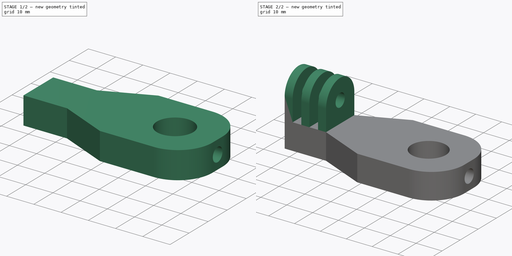
[diagram: build sequence overview — one tinted view per stage of 2, left to right]
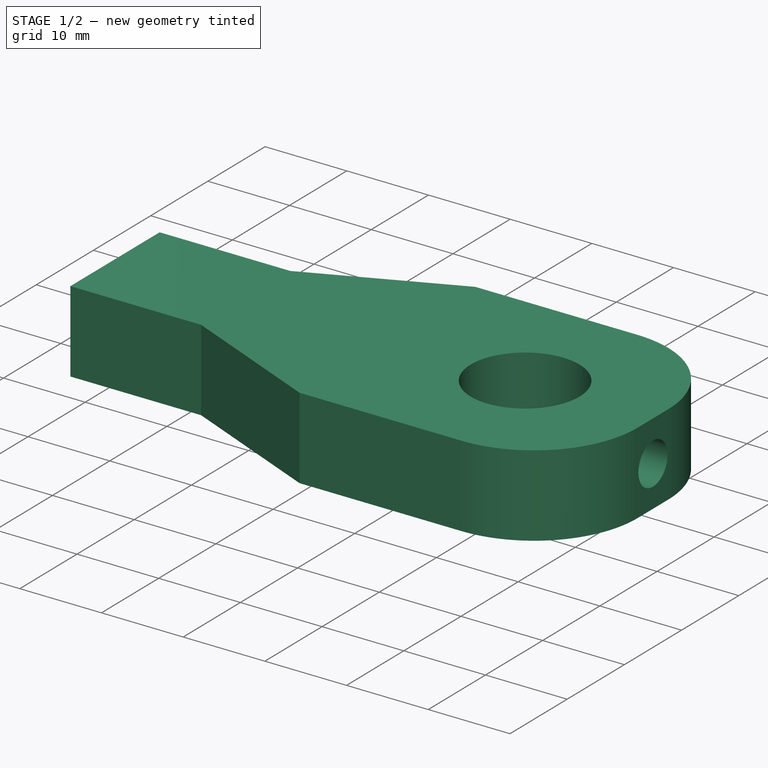
[diagram: stage 1 of 2 — iso view after this stage's code; geometry added in this stage tinted green]
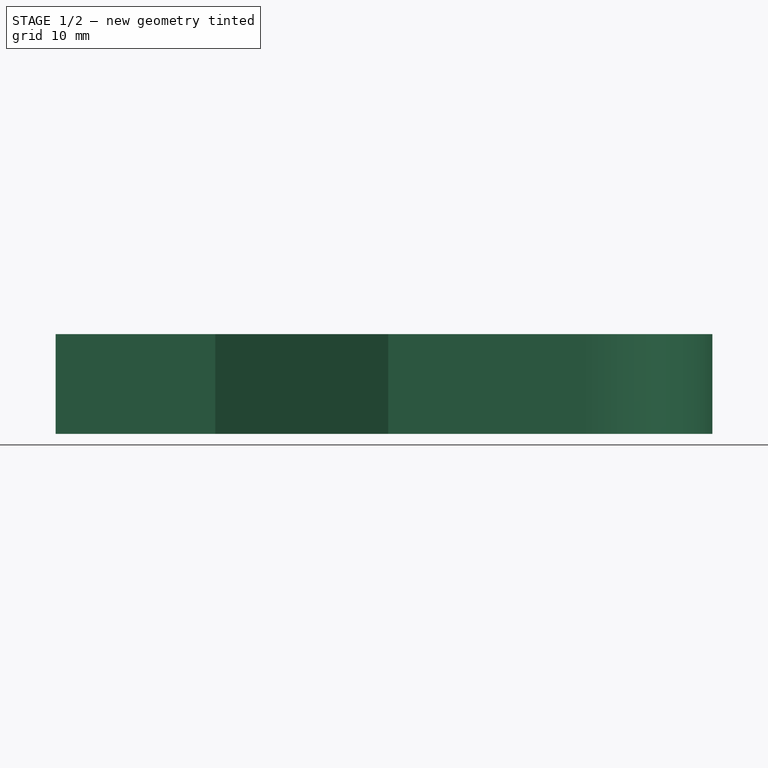
[diagram: stage 1 of 2 — front view after this stage's code; geometry added in this stage tinted green]
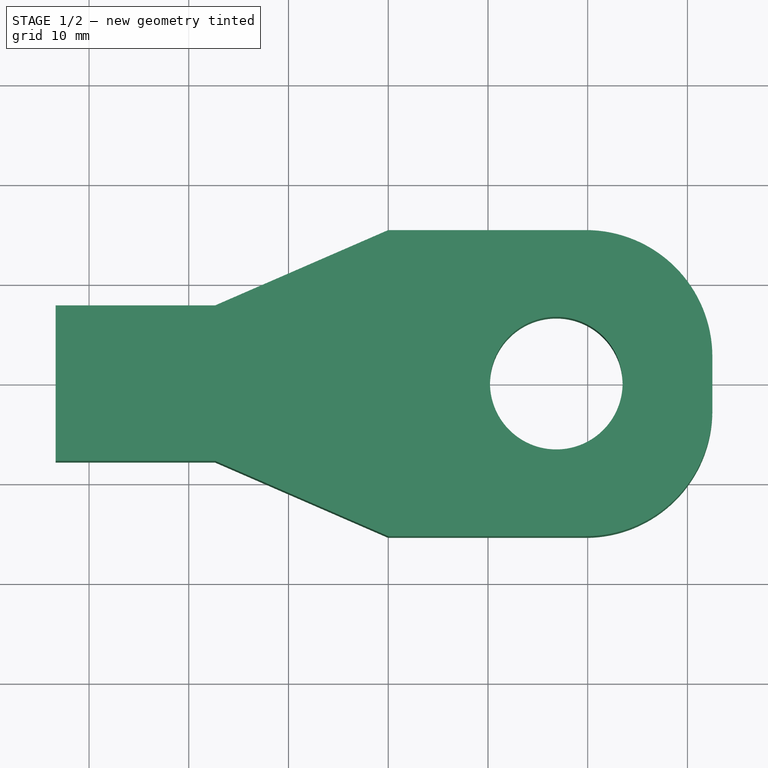
[diagram: stage 1 of 2 — top view after this stage's code; geometry added in this stage tinted green]
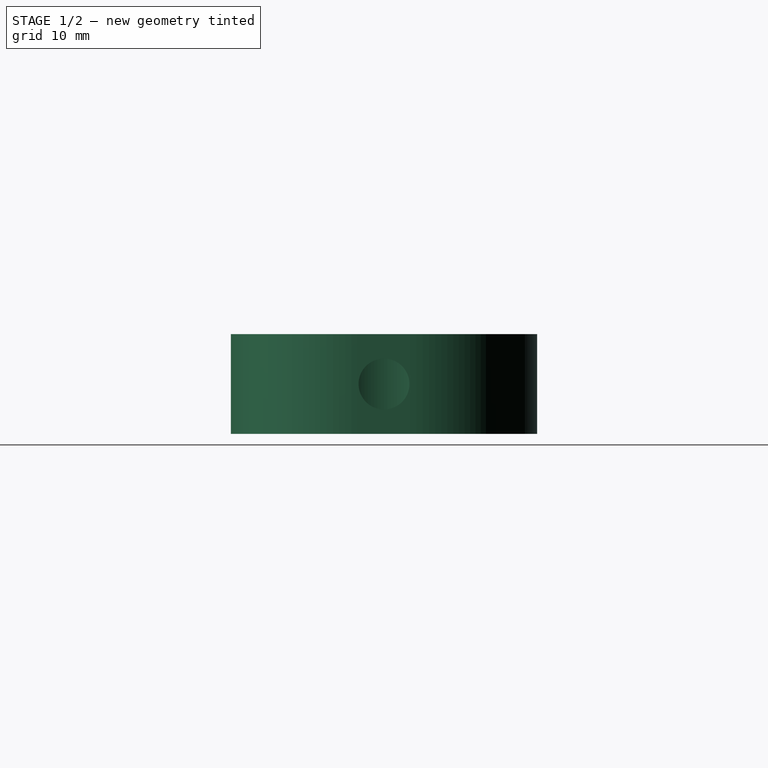
[diagram: stage 1 of 2 — right view after this stage's code; geometry added in this stage tinted green]
FCSTD DOCUMENT  (FreeCAD 1.0R39285 (Git))
Label: 1_2_mount
License: All rights reserved
LicenseURL: https://en.wikipedia.org/wiki/All_rights_reserved
objects: Sketcher::SketchObject×4, PartDesign::Pad×2, PartDesign::Pocket×2, PartDesign::Body×1, App::Part×1
note: 21 computed .brp shape members not serialized (recipe doc carries the construction recipe); baked Part::Feature solids carry a one-line shape summary decoded from their .brp

FEATURE [Sketcher::SketchObject] Sketch
  ArcFitTolerance = 1e-06
  AttachmentSupport = -> [XY_Plane001]
  FullyConstrained = true
  MakeInternals = false
  MapMode = 5
  sketch-geometry (13):
    g0: LineSegment StartX=0 StartY=-15.35 StartZ=0 EndX=19.8 EndY=-15.35 EndZ=0
    g1: LineSegment StartX=32.5 StartY=-2.65 StartZ=0 EndX=32.5 EndY=2.65 EndZ=0
    g2: LineSegment StartX=19.8 StartY=15.35 StartZ=0 EndX=0 EndY=15.35 EndZ=0
    g3: Circle CenterX=16.85 CenterY=0 CenterZ=0 NormalX=0 NormalY=0 NormalZ=1 AngleXU=0 Radius=6.65
    g4: ArcOfCircle CenterX=19.8 CenterY=2.65 CenterZ=0 NormalX=0 NormalY=0 NormalZ=1 AngleXU=0 Radius=12.7 StartAngle=0 EndAngle=1.5708
    g5: GeomPoint [constr] X=32.5 Y=15.35 Z=0
    g6: ArcOfCircle CenterX=19.8 CenterY=-2.65 CenterZ=0 NormalX=0 NormalY=0 NormalZ=1 AngleXU=0 Radius=12.7 StartAngle=4.71239 EndAngle=6.28319
    g7: GeomPoint [constr] X=32.5 Y=-15.35 Z=0
    g8: LineSegment StartX=-33.35 StartY=-7.8 StartZ=0 EndX=-17.35 EndY=-7.8 EndZ=0
    g9: LineSegment StartX=-17.35 StartY=7.8 StartZ=0 EndX=-33.35 EndY=7.8 EndZ=0
    g10: LineSegment StartX=0 StartY=15.35 StartZ=0 EndX=-17.35 EndY=7.8 EndZ=0
    g11: LineSegment StartX=-17.35 StartY=-7.8 StartZ=0 EndX=0 EndY=-15.35 EndZ=0
    g12: LineSegment StartX=-33.35 StartY=7.8 StartZ=0 EndX=-33.35 EndY=-7.8 EndZ=0
  constraints (35):
    c: Vertical(g1)
    c: Horizontal(g0)
    c: Horizontal(g2)
    c: Diameter(g3) = 13.3
    c: PointOnObject(g3,g-1)
    c: DistanceX(g-1,g3) = 16.85
    c: PointOnObject(g5,g2)
    c: PointOnObject(g5,g1)
    c: Tangent(g2,g4) = -1.5708
    c: Tangent(g1,g4) = -1.5708
    c: PointOnObject(g7,g1)
    c: PointOnObject(g7,g0)
    c: Tangent(g1,g6) = -1.5708
    c: Tangent(g0,g6) = -1.5708
    c: Radius(g6) = 12.7
    c: Radius(g4) = 12.7
    c: Horizontal(g8)
    c: Horizontal(g9)
    c: Distance(g9,g9) = 16
    c: Distance(g8,g9) = 15.6
    c: DistanceY(g-1,g9) = 7.8
    c: Coincident(g11,g8)
    c: Coincident(g2,g10)
    c: Coincident(g0,g11)
    c: Coincident(g12,g9)
    c: Coincident(g12,g8)
    c: Vertical(g12)
    c: DistanceX(g10,g-1) = 17.35
    c: Coincident(g9,g10)
    c: DistanceX(g8,g8) = 16
    c: DistanceY(g-1,g2) = 15.35
    c: DistanceY(g0,g-1) = 15.35
    c: DistanceX(g-1,g1) = 32.5
    c: DistanceX(g2,g-1) = 0
    c: DistanceX(g0,g-1) = 0
FEATURE [PartDesign::Pad] Pad  label="MainPad"
  Direction = (0,0,1)
  Length = 10
  Length2 = 10
  Profile = -> Sketch
  ReferenceAxis = -> Sketch [N_Axis]
  Refine = true
  Suppressed = false
  Type = 0
FEATURE [Sketcher::SketchObject] Sketch001
  ArcFitTolerance = 1e-06
  AttachmentSupport = -> [Pad]
  FullyConstrained = true
  MakeInternals = false
  MapMode = 5
  Placement = pos=(32.5,0,0) rot=(0.57735,0.57735,0.57735;2.0944rad)
  sketch-geometry (1):
    g0: Circle CenterX=0 CenterY=5 CenterZ=0 NormalX=0 NormalY=0 NormalZ=1 AngleXU=0 Radius=2.55
  constraints (3):
    c: Diameter(g0) = 5.1
    c: PointOnObject(g0,g-2)
    c: DistanceY(g-1,g0) = 5
FEATURE [PartDesign::Pocket] Pocket  label="EndScrewPocket"
  BaseFeature = -> Pad
  Direction = (-1,0,0)
  Length = 10
  Length2 = 5
  Profile = -> Sketch001
  ReferenceAxis = -> Sketch001 [N_Axis]
  Refine = true
  Suppressed = false
  Type = 0
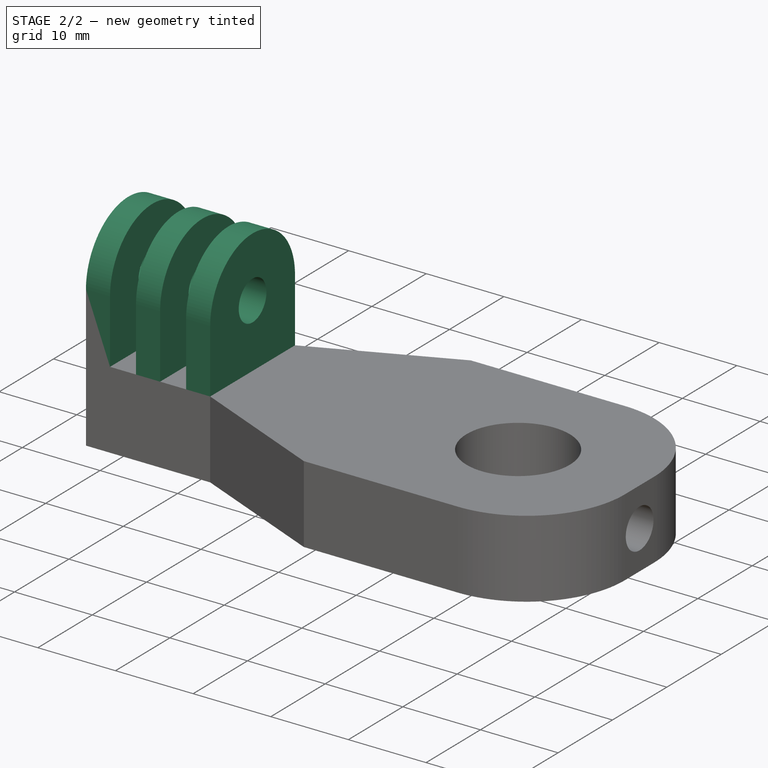
[diagram: stage 2 of 2 — iso view after this stage's code; geometry added in this stage tinted green]
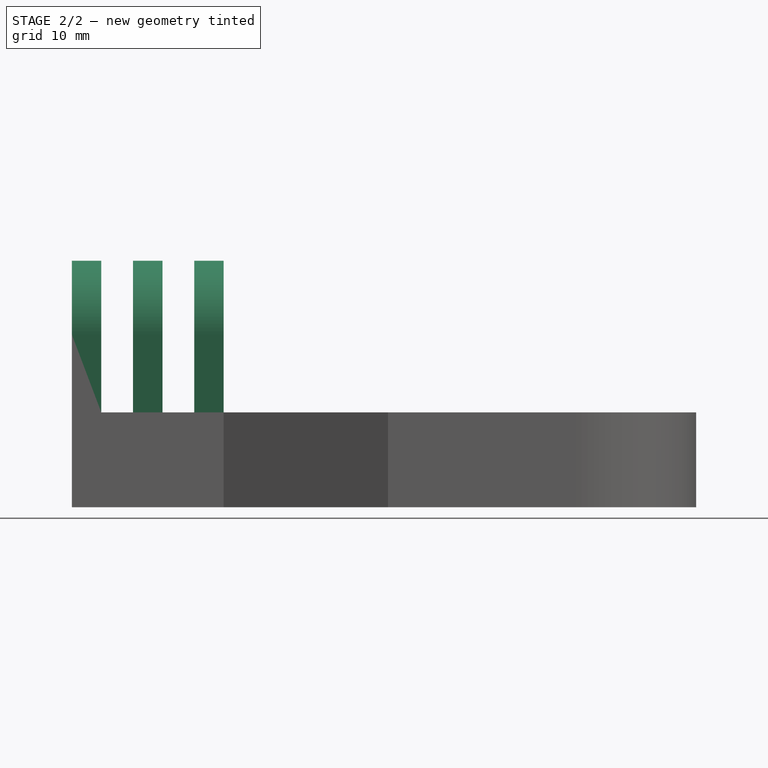
[diagram: stage 2 of 2 — front view after this stage's code; geometry added in this stage tinted green]
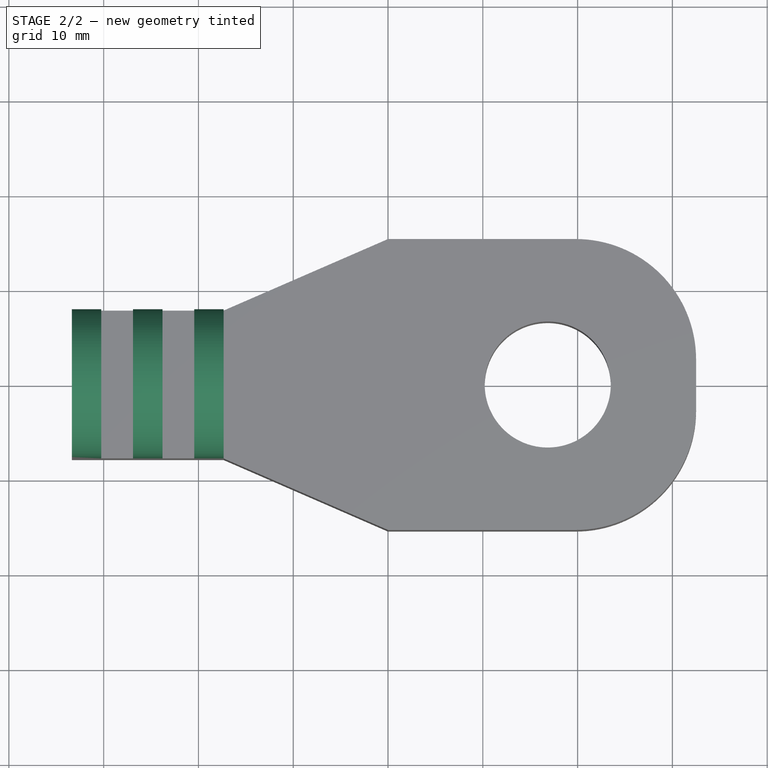
[diagram: stage 2 of 2 — top view after this stage's code; geometry added in this stage tinted green]
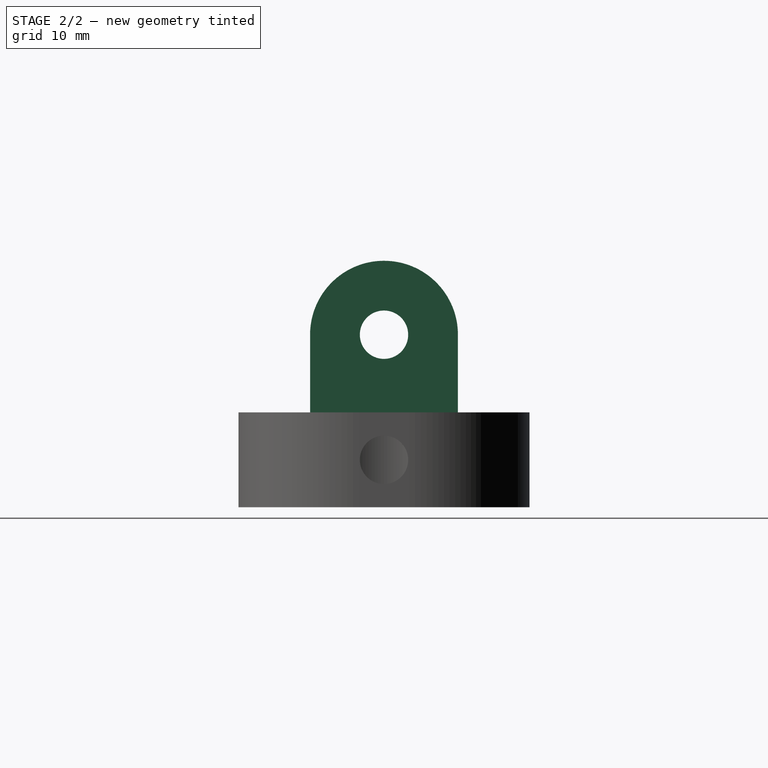
[diagram: stage 2 of 2 — right view after this stage's code; geometry added in this stage tinted green]
FEATURE [Sketcher::SketchObject] Sketch002
  ArcFitTolerance = 1e-06
  AttachmentSupport = -> [Pocket]
  FullyConstrained = true
  MakeInternals = false
  MapMode = 5
  Placement = pos=(0,0,10) rot=(0,0,1;0rad)
  sketch-geometry (12):
    g0: LineSegment StartX=-33.35 StartY=7.8 StartZ=0 EndX=-33.35 EndY=-7.8 EndZ=0
    g1: LineSegment StartX=-33.35 StartY=-7.8 StartZ=0 EndX=-30.25 EndY=-7.8 EndZ=0
    g2: LineSegment StartX=-30.25 StartY=-7.8 StartZ=0 EndX=-30.25 EndY=7.8 EndZ=0
    g3: LineSegment StartX=-30.25 StartY=7.8 StartZ=0 EndX=-33.35 EndY=7.8 EndZ=0
    g4: LineSegment StartX=-26.9 StartY=7.8 StartZ=0 EndX=-26.9 EndY=-7.8 EndZ=0
    g5: LineSegment StartX=-26.9 StartY=-7.8 StartZ=0 EndX=-23.8 EndY=-7.8 EndZ=0
    g6: LineSegment StartX=-23.8 StartY=-7.8 StartZ=0 EndX=-23.8 EndY=7.8 EndZ=0
    g7: LineSegment StartX=-23.8 StartY=7.8 StartZ=0 EndX=-26.9 EndY=7.8 EndZ=0
    g8: LineSegment StartX=-20.45 StartY=7.8 StartZ=0 EndX=-20.45 EndY=-7.8 EndZ=0
    g9: LineSegment StartX=-20.45 StartY=-7.8 StartZ=0 EndX=-17.35 EndY=-7.8 EndZ=0
    g10: LineSegment StartX=-17.35 StartY=-7.8 StartZ=0 EndX=-17.35 EndY=7.8 EndZ=0
    g11: LineSegment StartX=-17.35 StartY=7.8 StartZ=0 EndX=-20.45 EndY=7.8 EndZ=0
  constraints (36):
    c: Coincident(g0,g1)
    c: Coincident(g1,g2)
    c: Coincident(g2,g3)
    c: Coincident(g3,g0)
    c: Vertical(g0)
    c: Vertical(g2)
    c: Horizontal(g1)
    c: Horizontal(g3)
    c: Distance(g0,g2) = 3.1
    c: Distance(g1,g3) = 15.6
    c: Coincident(g4,g5)
    c: Coincident(g5,g6)
    c: Coincident(g6,g7)
    c: Coincident(g7,g4)
    c: Vertical(g4)
    c: Vertical(g6)
    c: Horizontal(g5)
    c: Horizontal(g7)
    c: Distance(g4,g6) = 3.1
    c: Distance(g5,g7) = 15.6
    c: Coincident(g8,g9)
    c: Coincident(g9,g10)
    c: Coincident(g10,g11)
    c: Coincident(g11,g8)
    c: Vertical(g8)
    c: Vertical(g10)
    c: Horizontal(g9)
    c: Horizontal(g11)
    c: Distance(g8,g10) = 3.1
    c: Distance(g9,g11) = 15.6
    c: DistanceY(g-1,g2) = 7.8
    c: DistanceY(g-1,g6) = 7.8
    c: DistanceY(g-1,g10) = 7.8
    c: DistanceX(g0,g-1) = 33.35
    c: DistanceX(g2,g4) = 3.35
    c: DistanceX(g6,g8) = 3.35
FEATURE [PartDesign::Pad] Pad001  label="MountsPad"
  BaseFeature = -> Pocket
  Direction = (0,0,1)
  Length = 16
  Length2 = 10
  Profile = -> Sketch002
  ReferenceAxis = -> Sketch002 [N_Axis]
  Refine = true
  Suppressed = false
  Type = 0
FEATURE [Sketcher::SketchObject] Sketch003
  ArcFitTolerance = 1e-06
  AttachmentSupport = -> [Pad001]
  FullyConstrained = true
  MakeInternals = false
  MapMode = 5
  Placement = pos=(-33.35,0,0) rot=(0.57735,-0.57735,-0.57735;2.0944rad)
  sketch-geometry (5):
    g0: Circle CenterX=0 CenterY=18.2 CenterZ=0 NormalX=0 NormalY=0 NormalZ=1 AngleXU=0 Radius=2.55
    g1: ArcOfCircle CenterX=0 CenterY=18.2 CenterZ=0 NormalX=0 NormalY=0 NormalZ=1 AngleXU=0 Radius=7.8 StartAngle=0 EndAngle=3.14159
    g2: LineSegment StartX=-7.8 StartY=26.2 StartZ=0 EndX=-7.8 EndY=18.2 EndZ=0
    g3: LineSegment StartX=7.8 StartY=18.2 StartZ=0 EndX=7.8 EndY=26.2 EndZ=0
    g4: LineSegment StartX=7.8 StartY=26.2 StartZ=0 EndX=-7.8 EndY=26.2 EndZ=0
  constraints (15):
    c: Diameter(g0) = 5.1
    c: PointOnObject(g0,g-2)
    c: DistanceY(g-1,g0) = 18.2
    c: Diameter(g1) = 15.6
    c: Coincident(g1,g0)
    c: Coincident(g3,g4)
    c: Coincident(g4,g2)
    c: Vertical(g2)
    c: Vertical(g3)
    c: Horizontal(g4)
    c: Distance(g2,g4) = 8
    c: DistanceY(g-1,g2) = 18.2
    c: Coincident(g1,g2)
    c: Coincident(g1,g3)
    c: DistanceY(g1,g1) = 0
FEATURE [PartDesign::Pocket] Pocket001  label="ShapePocket"
  BaseFeature = -> Pad001
  Direction = (1,0,0)
  Length = 5
  Length2 = 5
  Profile = -> Sketch003
  ReferenceAxis = -> Sketch003 [N_Axis]
  Refine = true
  Suppressed = false
  Type = 1
FEATURE [PartDesign::Body] Body  label="1_2_mount_body"
  AllowCompound = false
  Group = -> [Sketch,Pad,Sketch001,Pocket,Sketch002,Pad001,Sketch003,Pocket001]
  Origin = -> Origin001
  Tip = -> Pocket001
FEATURE [App::Part] Part  label="1_2_mount_part"
  Group = -> [Body]
  Origin = -> Origin
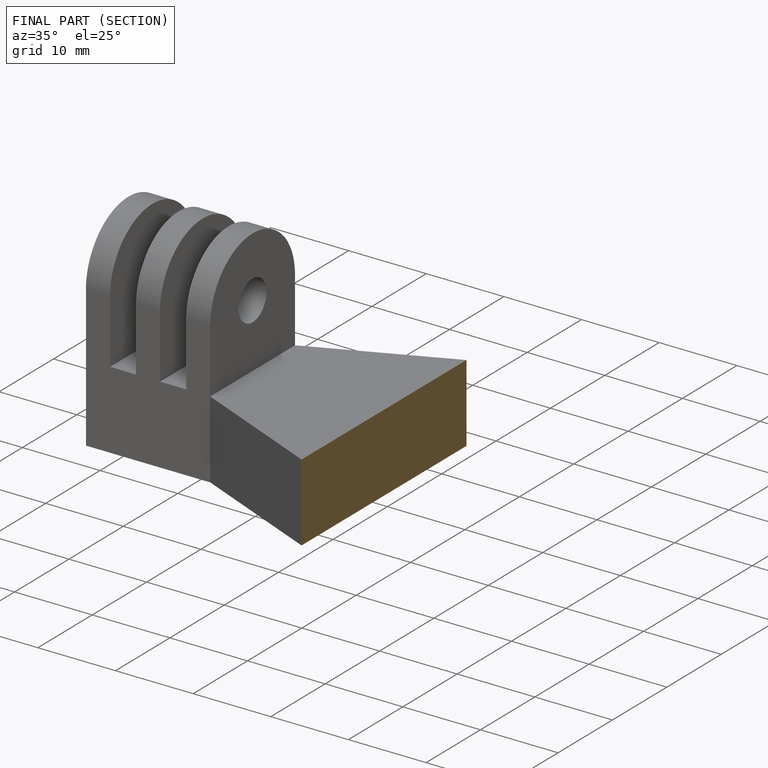
[diagram: finished part — half-section view (interior)]
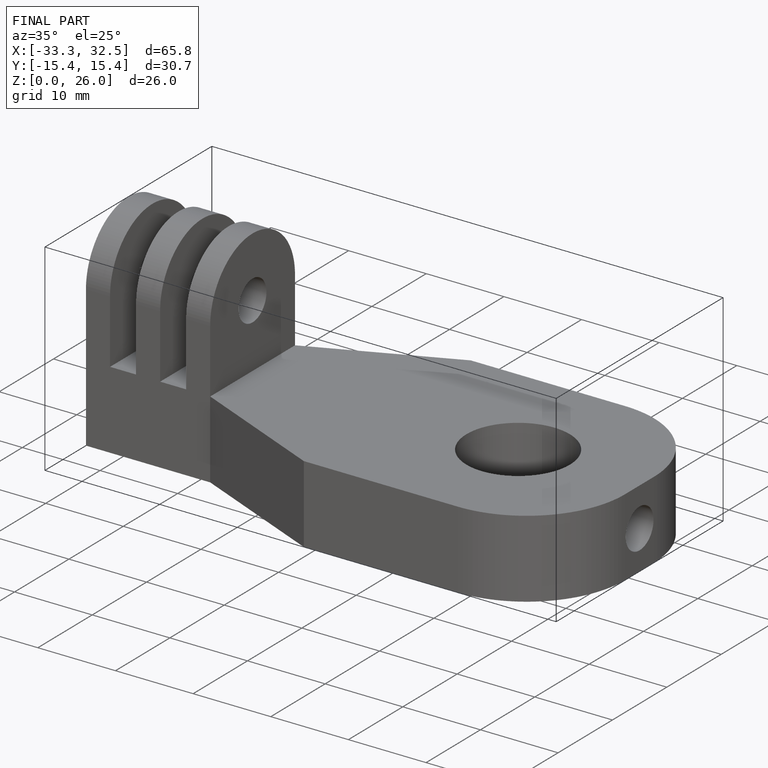
[diagram: finished part — iso view with bounding-box wireframe]
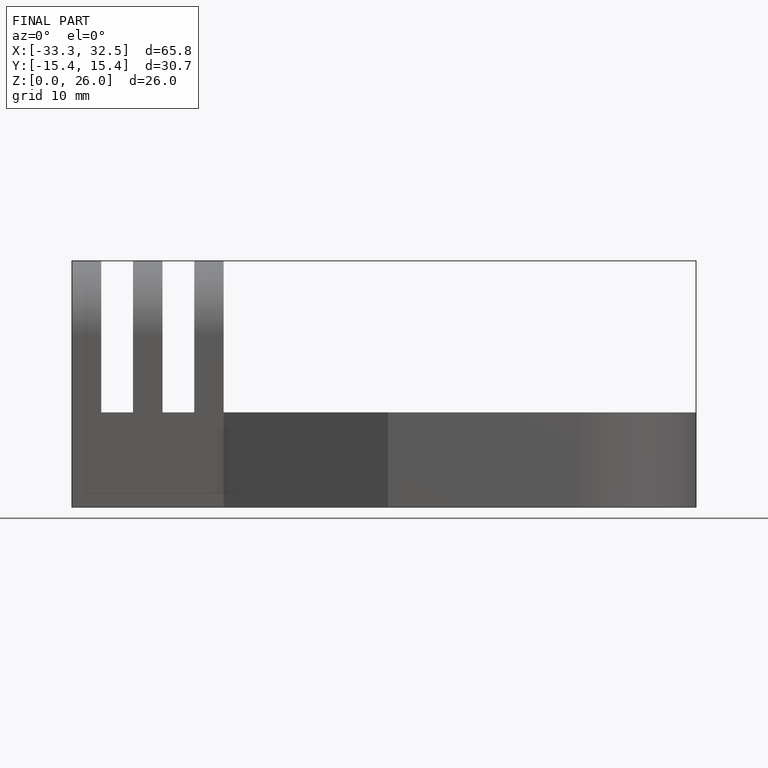
[diagram: finished part — front view with bounding-box wireframe]
